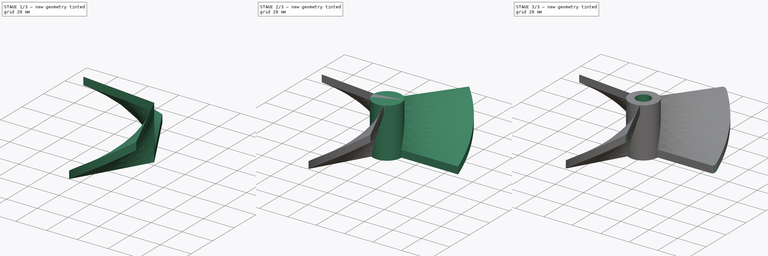
[diagram: build sequence overview — one tinted view per stage of 3, left to right]
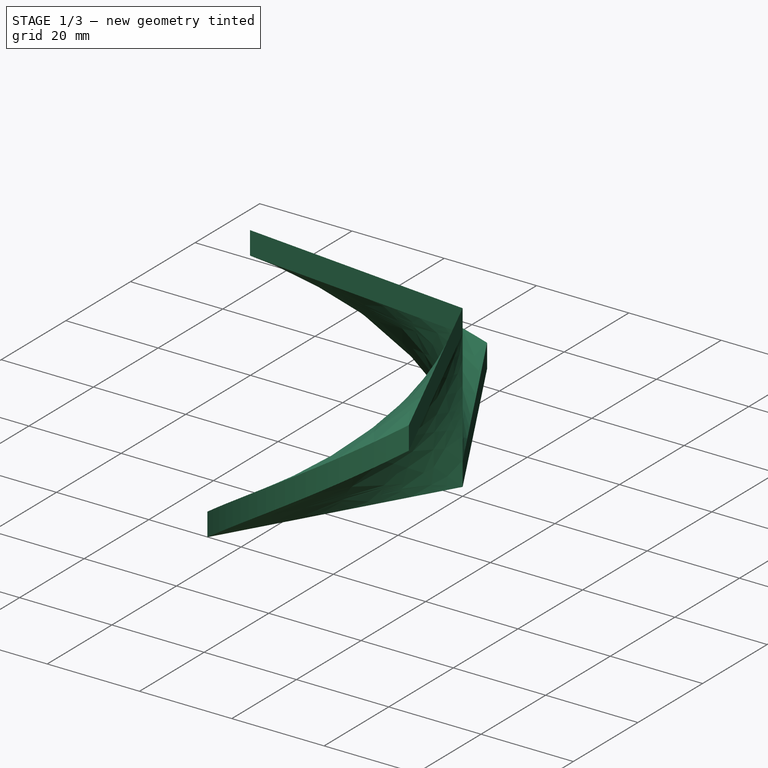
[diagram: stage 1 of 3 — iso view after this stage's code; geometry added in this stage tinted green]
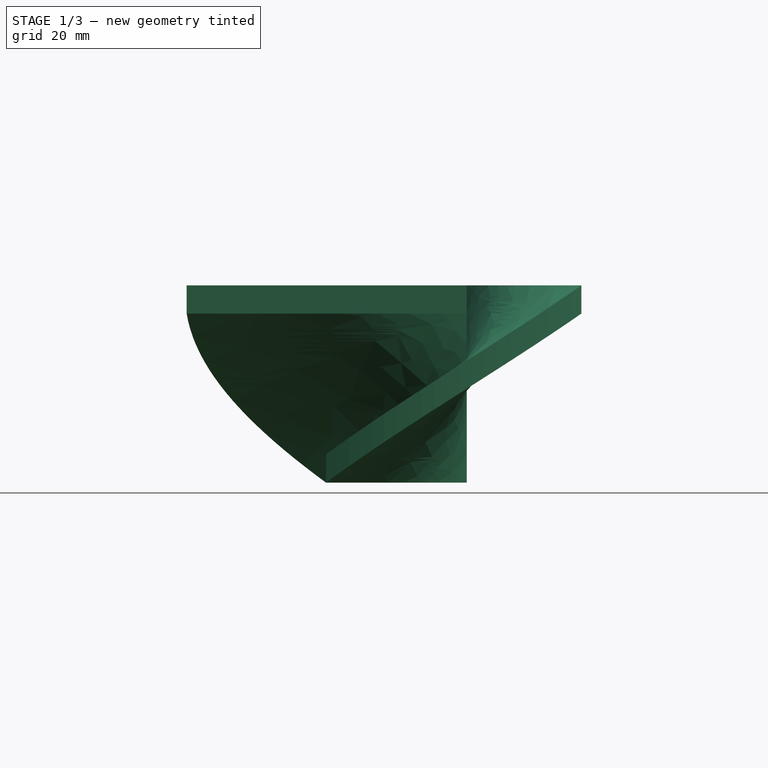
[diagram: stage 1 of 3 — front view after this stage's code; geometry added in this stage tinted green]
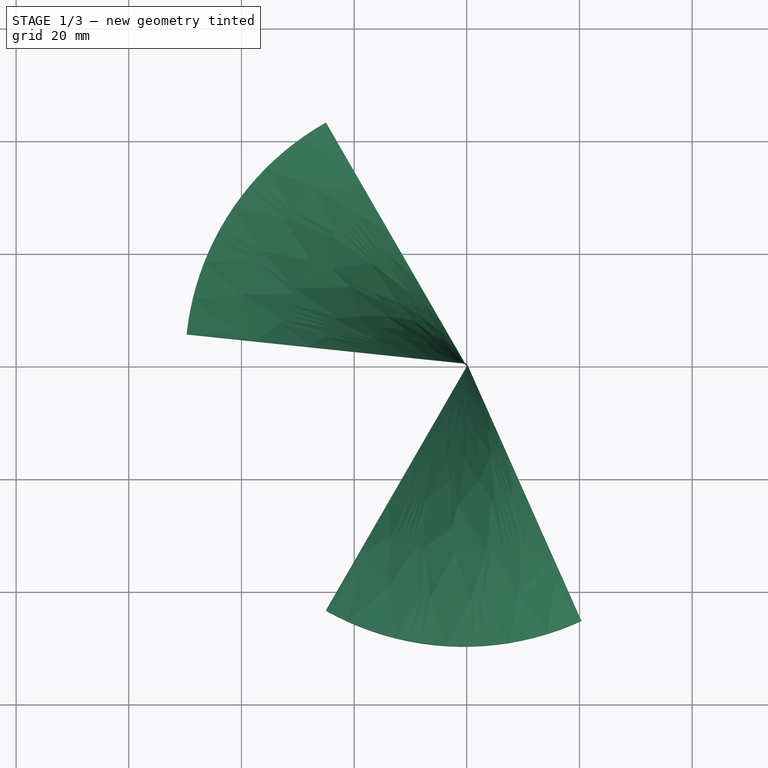
[diagram: stage 1 of 3 — top view after this stage's code; geometry added in this stage tinted green]
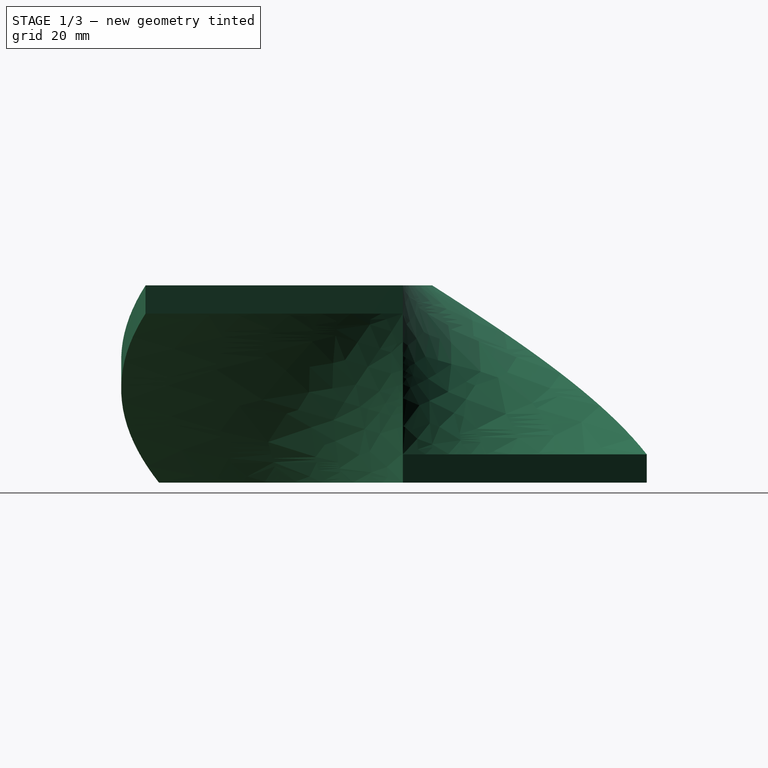
[diagram: stage 1 of 3 — right view after this stage's code; geometry added in this stage tinted green]
FCSTD DOCUMENT  (FreeCAD 0.16R)
Label: propeller
License: All rights reserved
LicenseURL: http://en.wikipedia.org/wiki/All_rights_reserved
objects: Sketcher::SketchObject×4, Part::Helix×3, Part::Sweep×3, Part::Cylinder×1, Part::MultiFuse×1, PartDesign::Fillet×1, PartDesign::Pocket×1
note: 15 computed .brp shape members not serialized (recipe doc carries the construction recipe); baked Part::Feature solids carry a one-line shape summary decoded from their .brp

FEATURE [Part::Sweep] Sweep001
  Frenet = true
  Sections = -> [Sketch001]
  Solid = true
  Spine = -> Helix001 [Edge1]
  Transition = 1
FEATURE [Part::Sweep] Sweep002
  Frenet = true
  Sections = -> [Sketch002]
  Solid = true
  Spine = -> Helix002 [Edge1]
  Transition = 1
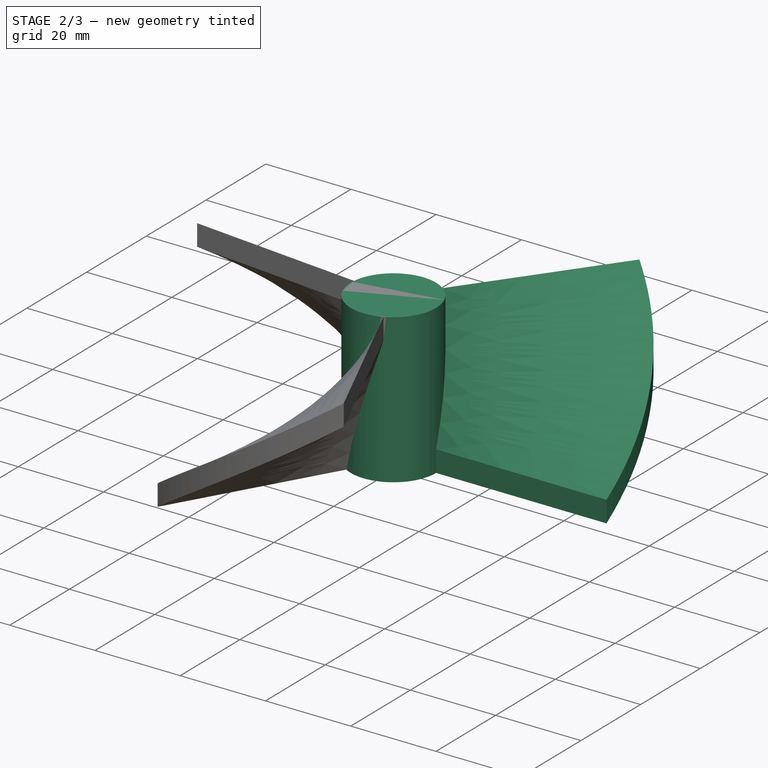
[diagram: stage 2 of 3 — iso view after this stage's code; geometry added in this stage tinted green]
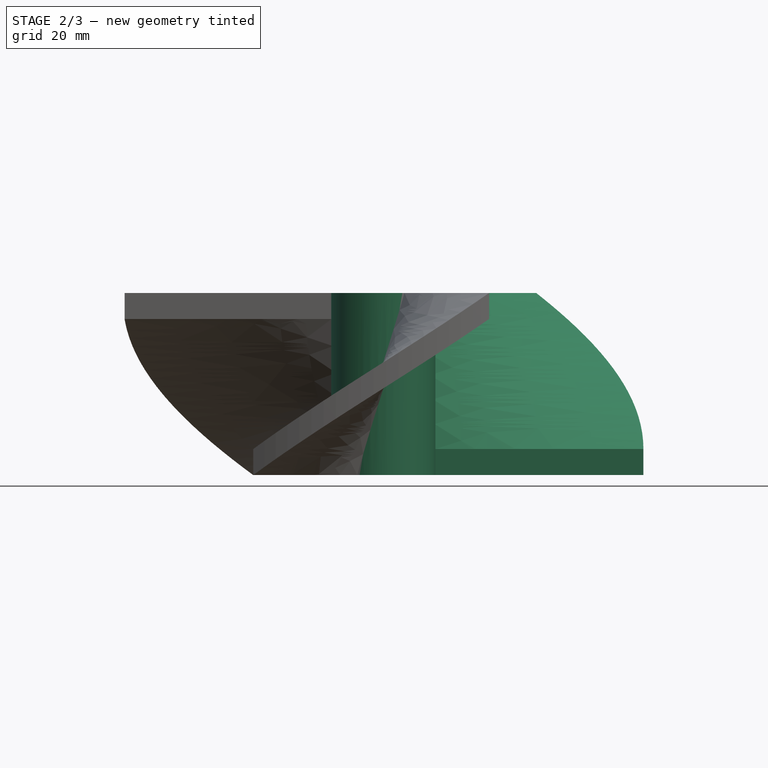
[diagram: stage 2 of 3 — front view after this stage's code; geometry added in this stage tinted green]
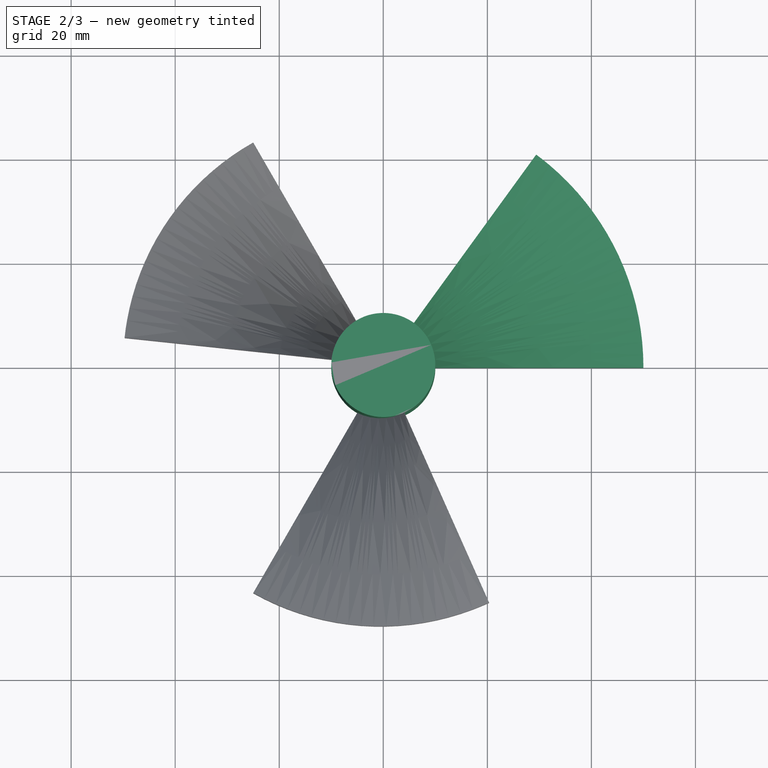
[diagram: stage 2 of 3 — top view after this stage's code; geometry added in this stage tinted green]
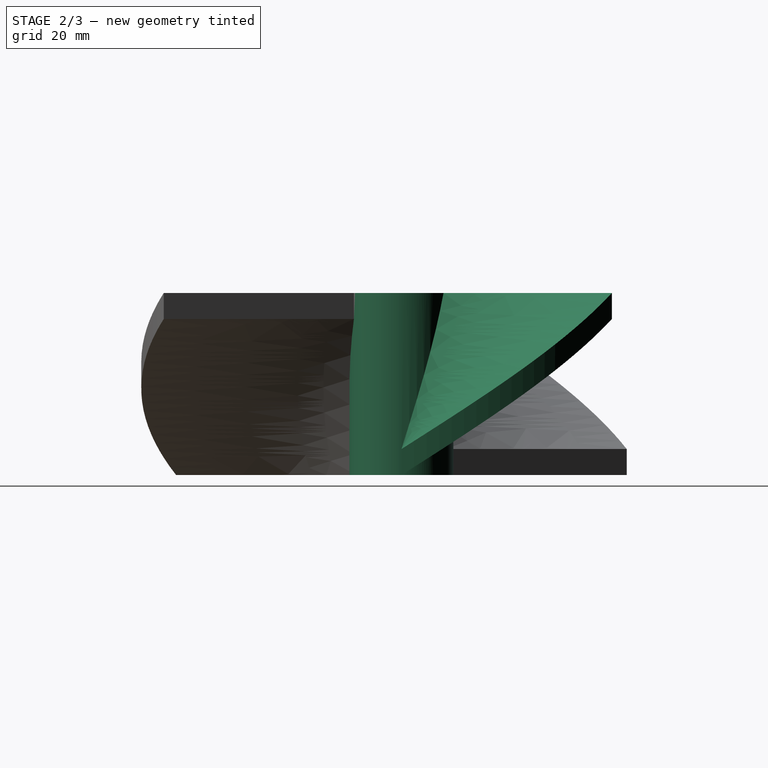
[diagram: stage 2 of 3 — right view after this stage's code; geometry added in this stage tinted green]
FEATURE [Part::Cylinder] Cylinder  label="Zylinder"
  Angle = 360
  Height = 35
  Radius = 10
FEATURE [Part::Helix] Helix
  Angle = 0
  Height = 30
  LocalCoord = 0
  Pitch = 200
  Radius = 50
  Style = 1
FEATURE [Part::Helix] Helix001
  Angle = 0
  Height = 30
  LocalCoord = 0
  Pitch = 200
  Placement = pos=(0,0,0) rot=(0,0,1;2.0944rad)
  Radius = 50
  Style = 1
  expr: Placement.Rotation.Angle = 120
FEATURE [Part::Helix] Helix002
  Angle = 0
  Height = 30
  LocalCoord = 0
  Pitch = 200
  Placement = pos=(0,0,0) rot=(0,0,1;4.18879rad)
  Radius = 50
  Style = 1
  expr: Placement.Rotation.Angle = 240
FEATURE [Sketcher::SketchObject] Sketch
  Placement = pos=(0,0,0) rot=(-1,0,0;4.71239rad)
  sketch-geometry (4):
    g0: LineSegment StartX=0 StartY=5 StartZ=0 EndX=50 EndY=5 EndZ=0
    g1: LineSegment StartX=50 StartY=5 StartZ=0 EndX=50 EndY=0 EndZ=0
    g2: LineSegment StartX=50 StartY=0 StartZ=0 EndX=0 EndY=0 EndZ=0
    g3: LineSegment StartX=0 StartY=0 StartZ=0 EndX=0 EndY=5 EndZ=0
  constraints (12):
    c: Coincident(g0,g1)
    c: Coincident(g1,g2)
    c: Coincident(g2,g3)
    c: Coincident(g3,g0)
    c: Horizontal(g0)
    c: Horizontal(g2)
    c: Vertical(g1)
    c: Vertical(g3)
    c: PointOnObject(g0,g-2)
    c: Distance(g1) = 5
    c: Distance(g0) = 50
    c: DistanceY(g-1,g2) = 0
FEATURE [Sketcher::SketchObject] Sketch001
  Placement = pos=(0,0,0) rot=(0.377964,0.654654,0.654654;2.41886rad)
  sketch-geometry (4):
    g0: LineSegment StartX=0 StartY=5 StartZ=0 EndX=50 EndY=5 EndZ=0
    g1: LineSegment StartX=50 StartY=5 StartZ=0 EndX=50 EndY=0 EndZ=0
    g2: LineSegment StartX=50 StartY=0 StartZ=0 EndX=0 EndY=0 EndZ=0
    g3: LineSegment StartX=0 StartY=0 StartZ=0 EndX=0 EndY=5 EndZ=0
  constraints (12):
    c: Coincident(g0,g1)
    c: Coincident(g1,g2)
    c: Coincident(g2,g3)
    c: Coincident(g3,g0)
    c: Horizontal(g0)
    c: Horizontal(g2)
    c: Vertical(g1)
    c: Vertical(g3)
    c: PointOnObject(g0,g-2)
    c: Distance(g1) = 5
    c: Distance(g0) = 50
    c: DistanceY(g-1,g2) = 0
FEATURE [Sketcher::SketchObject] Sketch002
  Placement = pos=(0,0,0) rot=(-0.377964,0.654654,0.654654;3.86433rad)
  sketch-geometry (4):
    g0: LineSegment StartX=0 StartY=5 StartZ=0 EndX=50 EndY=5 EndZ=0
    g1: LineSegment StartX=50 StartY=5 StartZ=0 EndX=50 EndY=0 EndZ=0
    g2: LineSegment StartX=50 StartY=0 StartZ=0 EndX=0 EndY=0 EndZ=0
    g3: LineSegment StartX=0 StartY=0 StartZ=0 EndX=0 EndY=5 EndZ=0
  constraints (12):
    c: Coincident(g0,g1)
    c: Coincident(g1,g2)
    c: Coincident(g2,g3)
    c: Coincident(g3,g0)
    c: Horizontal(g0)
    c: Horizontal(g2)
    c: Vertical(g1)
    c: Vertical(g3)
    c: PointOnObject(g0,g-2)
    c: Distance(g1) = 5
    c: Distance(g0) = 50
    c: DistanceY(g-1,g2) = 0
FEATURE [Part::Sweep] Sweep
  Frenet = true
  Sections = -> [Sketch]
  Solid = true
  Spine = -> Helix [Edge1]
  Transition = 1
FEATURE [Part::MultiFuse] Fusion
  Shapes = -> [Cylinder,Sweep,Sweep001,Sweep002]
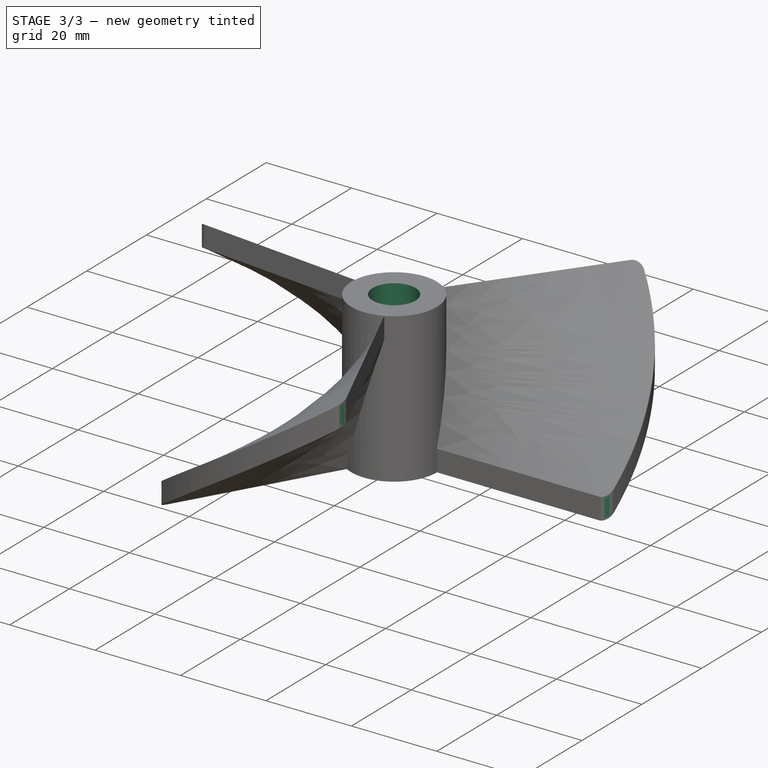
[diagram: stage 3 of 3 — iso view after this stage's code; geometry added in this stage tinted green]
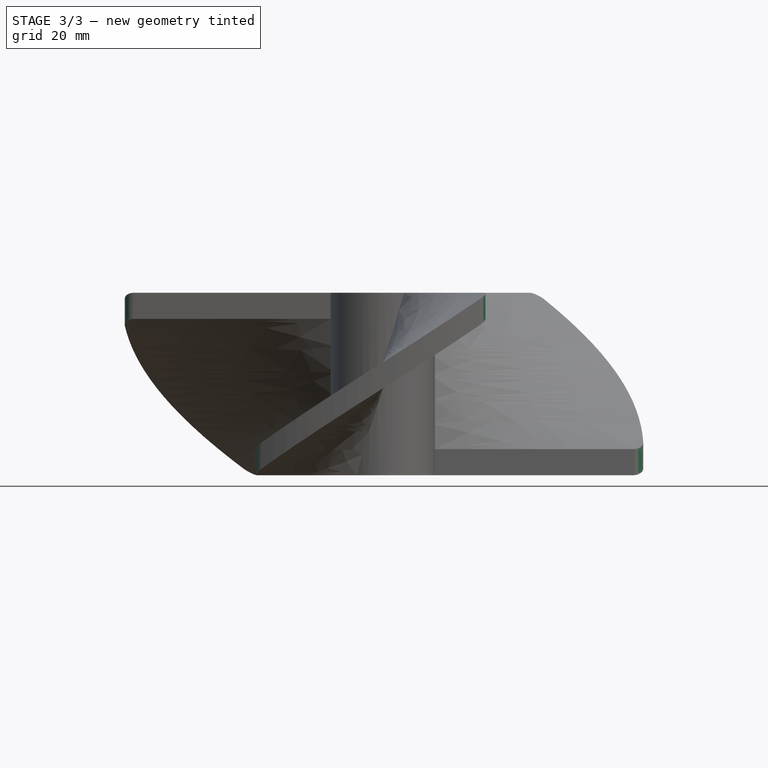
[diagram: stage 3 of 3 — front view after this stage's code; geometry added in this stage tinted green]
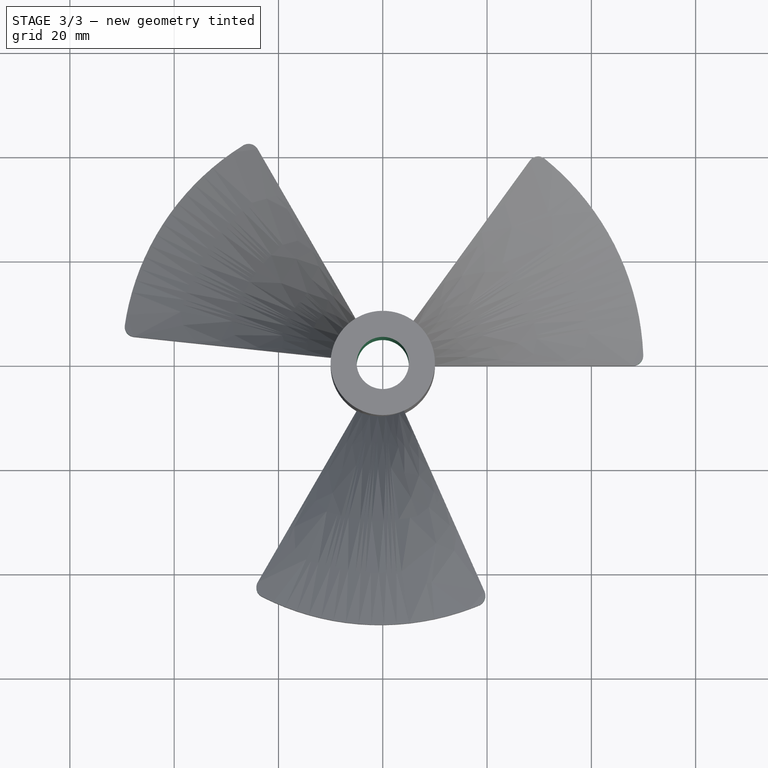
[diagram: stage 3 of 3 — top view after this stage's code; geometry added in this stage tinted green]
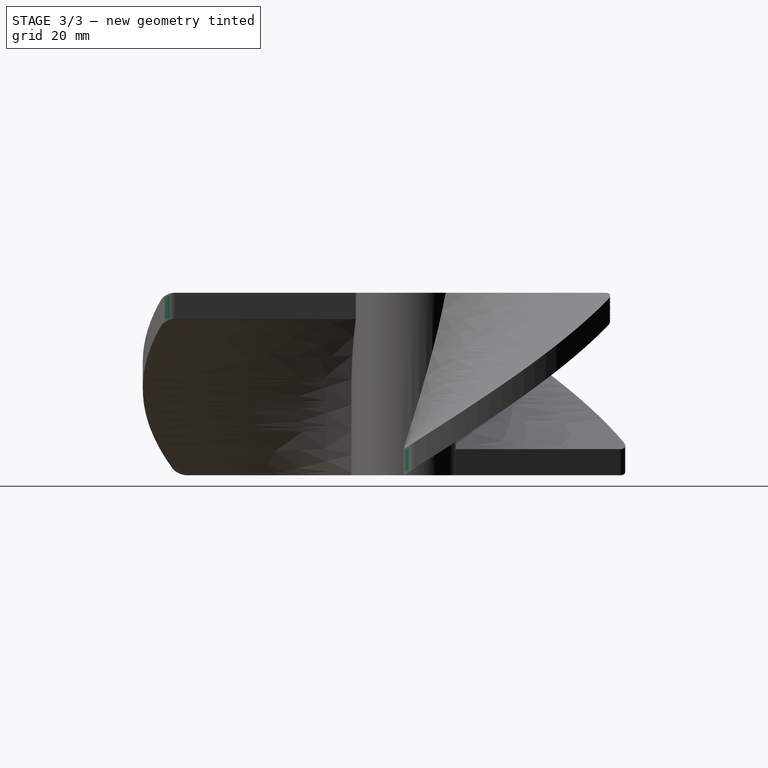
[diagram: stage 3 of 3 — right view after this stage's code; geometry added in this stage tinted green]
FEATURE [PartDesign::Fillet] Fillet
  Base = -> Fusion [Edge2,Edge4,Edge36,Edge41,Edge33,Edge44]
  Radius = 2
FEATURE [Sketcher::SketchObject] Sketch003
  Placement = pos=(0,0,35) rot=(0,0,1;0rad)
  Support = -> Fillet [Face15]
  sketch-geometry (1):
    g0: Circle CenterX=0 CenterY=0 CenterZ=0 NormalX=0 NormalY=0 NormalZ=1 Radius=5
  constraints (2):
    c: Coincident(g0,g-1)
    c: Radius(g0) = 5
FEATURE [PartDesign::Pocket] Pocket
  Length = 36
  Sketch = -> Sketch003
  Type = 0
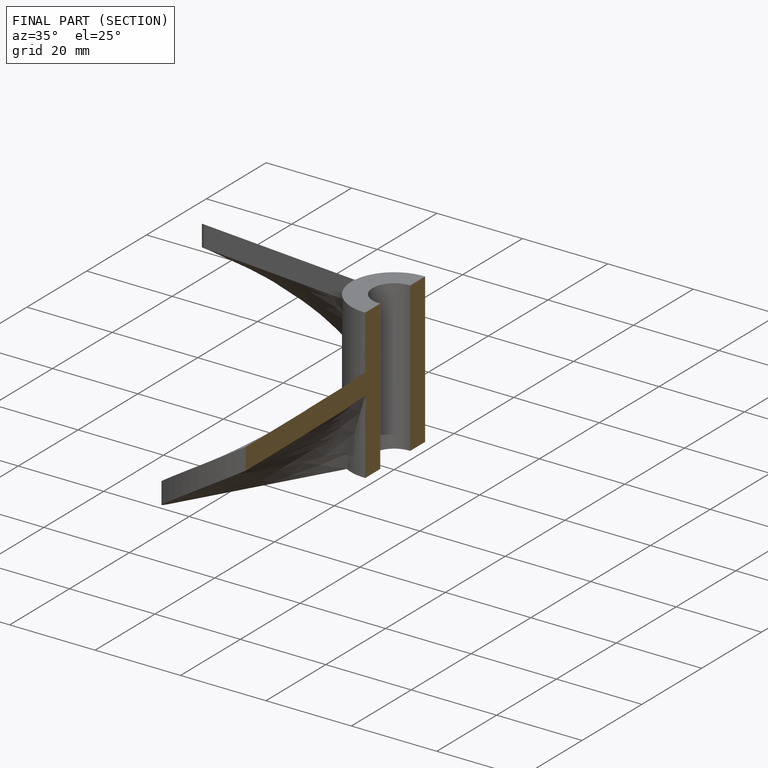
[diagram: finished part — half-section view (interior)]
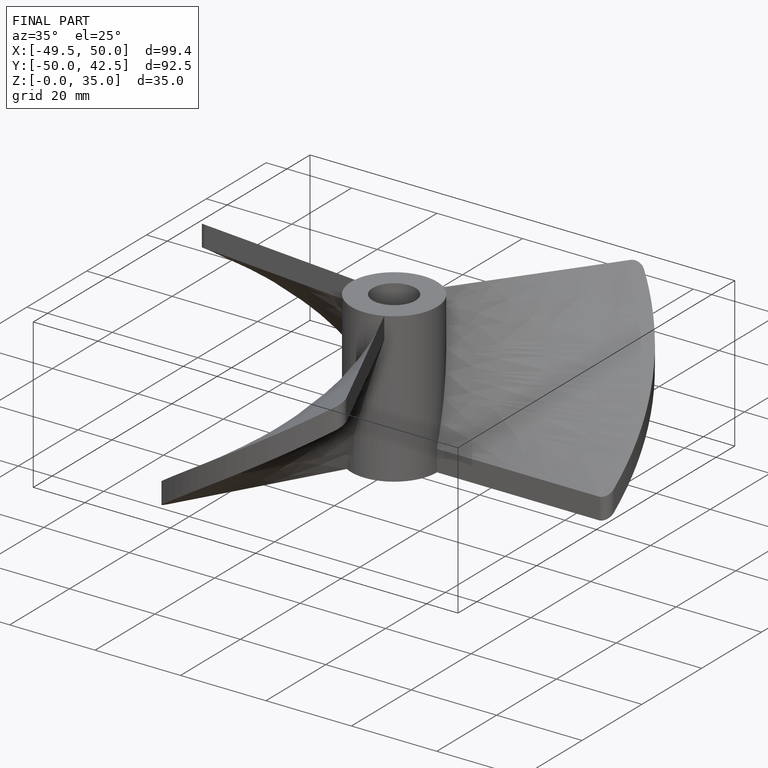
[diagram: finished part — iso view with bounding-box wireframe]
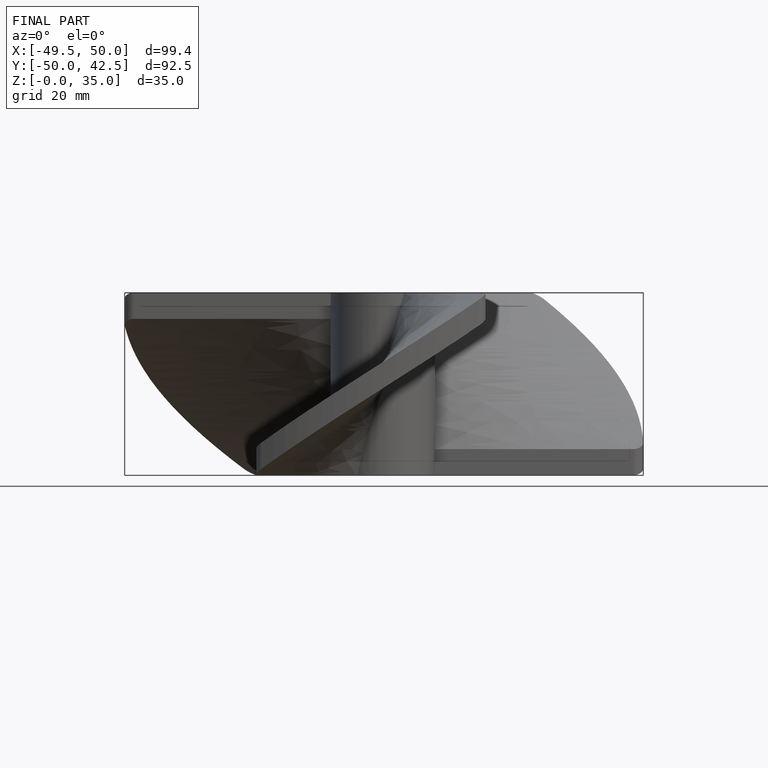
[diagram: finished part — front view with bounding-box wireframe]
